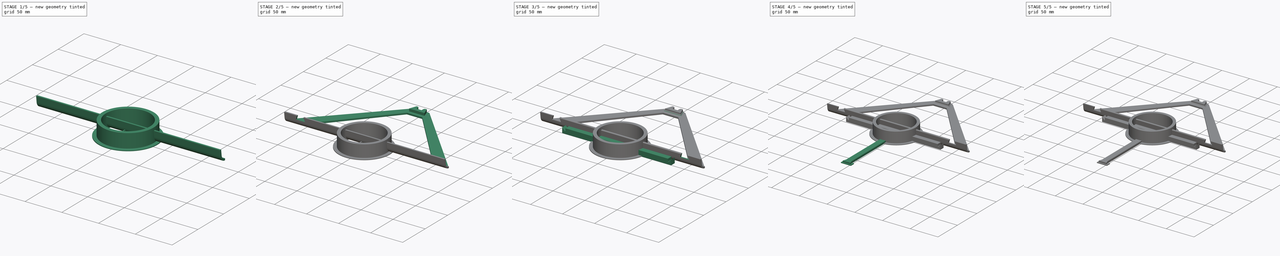
[diagram: build sequence overview — one tinted view per stage of 5, left to right]
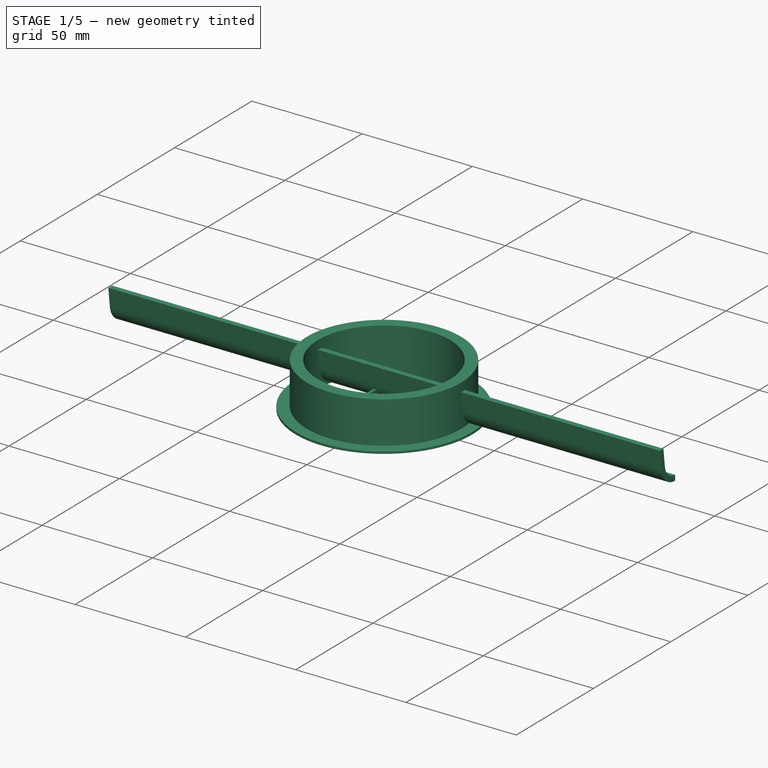
[diagram: stage 1 of 5 — iso view after this stage's code; geometry added in this stage tinted green]
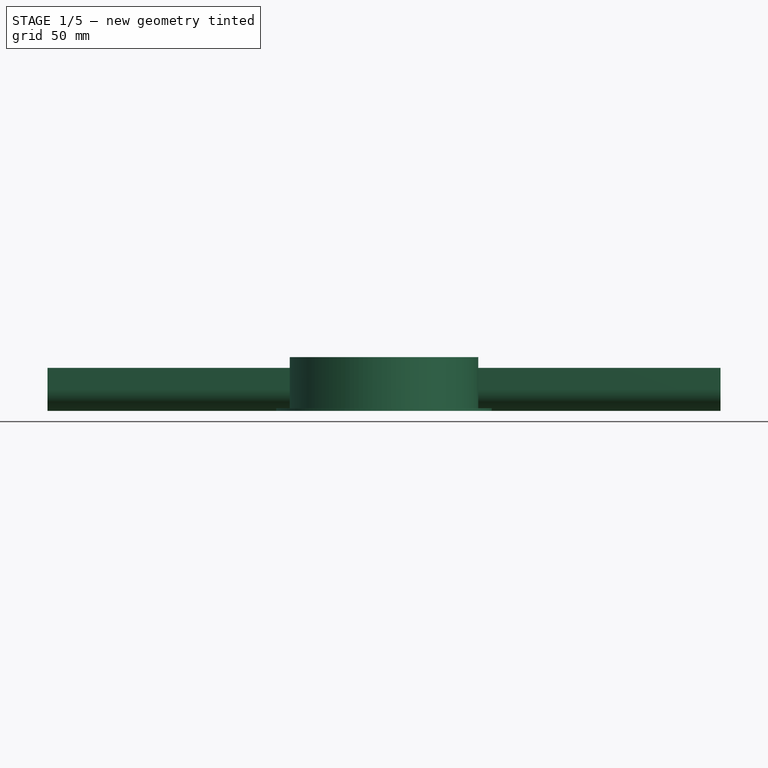
[diagram: stage 1 of 5 — front view after this stage's code; geometry added in this stage tinted green]
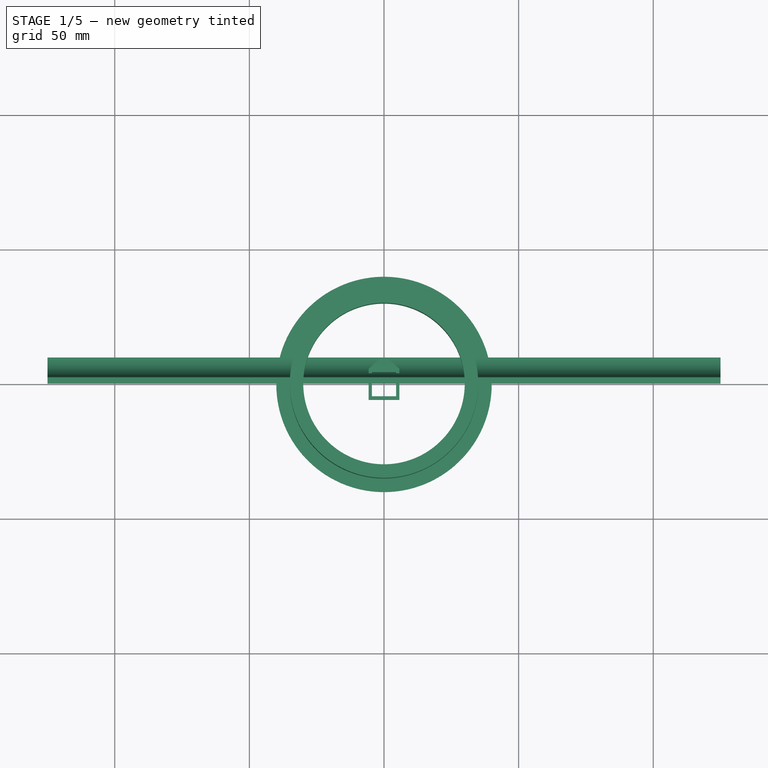
[diagram: stage 1 of 5 — top view after this stage's code; geometry added in this stage tinted green]
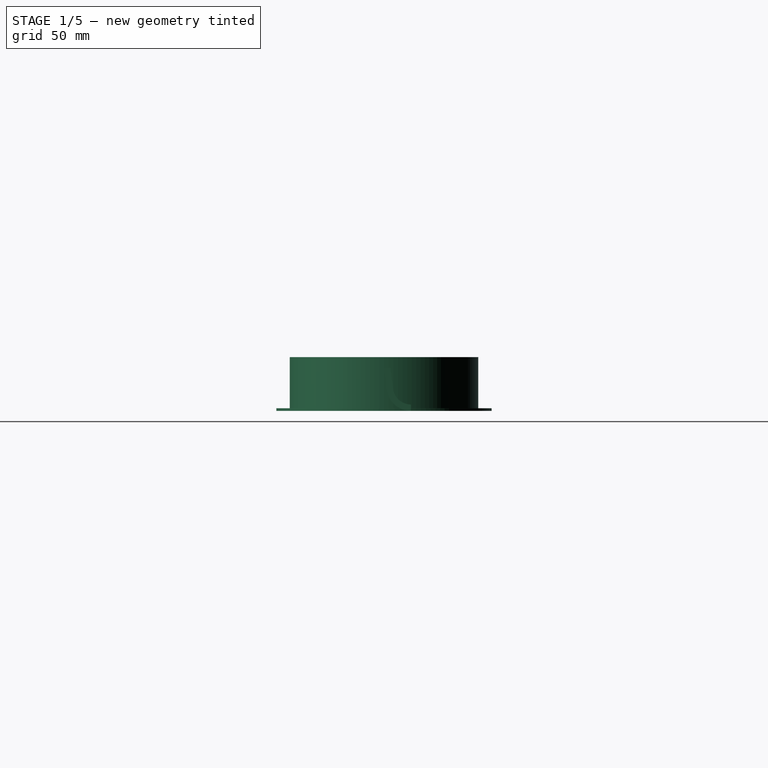
[diagram: stage 1 of 5 — right view after this stage's code; geometry added in this stage tinted green]
FCSTD DOCUMENT  (FreeCAD 0.22R37573 (Git))
Label: dry
License: All rights reserved
LicenseURL: http://en.wikipedia.org/wiki/All_rights_reserved
objects: Sketcher::SketchObject×19, PartDesign::Pad×15, PartDesign::Body×7, PartDesign::Pocket×4, PartDesign::Mirrored×2, PartDesign::Fillet×2, Spreadsheet::Sheet×1
note: 70 computed .brp shape members not serialized (recipe doc carries the construction recipe); baked Part::Feature solids carry a one-line shape summary decoded from their .brp

FEATURE [Sketcher::SketchObject] Sketch  label="rise"
  AttachmentSupport = -> [XY_Plane]
  FullyConstrained = true
  MapMode = 5
  Support = -> [XY_Plane]
  sketch-geometry (8):
    g0: LineSegment StartX=-12 StartY=128 StartZ=0 EndX=12 EndY=128 EndZ=0
    g1: LineSegment StartX=-12 StartY=112 StartZ=0 EndX=12 EndY=112 EndZ=0
    g2: LineSegment StartX=-124 StartY=10 StartZ=0 EndX=-12 EndY=128 EndZ=0
    g3: LineSegment StartX=12 StartY=128 StartZ=0 EndX=124 EndY=10 EndZ=0
    g4: LineSegment StartX=-12 StartY=112 StartZ=0 EndX=-100 EndY=10 EndZ=0
    g5: LineSegment StartX=12 StartY=112 StartZ=0 EndX=100 EndY=10 EndZ=0
    g6: LineSegment StartX=-124 StartY=10 StartZ=0 EndX=-100 EndY=10 EndZ=0
    g7: LineSegment StartX=100 StartY=10 StartZ=0 EndX=124 EndY=10 EndZ=0
  constraints (20):
    c: DistanceX(g0,g0) = 24
    c: DistanceY(g-1,g0) = 128
    c: DistanceY(g1,g0) = 16
    c: Vertical(g0,g1)
    c: Coincident(g2,g0)
    c: Coincident(g3,g0)
    c: Coincident(g4,g1)
    c: Coincident(g5,g1)
    c: Symmetric(g4,g5,g-2)
    c: Coincident(g6,g2)
    c: Coincident(g6,g4)
    c: Coincident(g7,g5)
    c: Coincident(g7,g3)
    c: DistanceX(g6,g6) = 24
    c: Symmetric(g0,g0,g-2)
    c: Symmetric(g1,g1,g-2)
    c: DistanceY(g-1,g4) = 10
    c: Horizontal(g6)
    c: Symmetric(g3,g2,g-2)
    c: DistanceX(g4,g-1) = 100
FEATURE [Sketcher::SketchObject] Sketch001  label="base"
  AttachmentSupport = -> [YZ_Plane]
  FullyConstrained = true
  MapMode = 5
  Placement = pos=(0,0,0) rot=(0.57735,0.57735,0.57735;2.0944rad)
  Support = -> [YZ_Plane]
  sketch-geometry (9):
    g0: LineSegment StartX=10 StartY=2.4 StartZ=0 EndX=10 EndY=0 EndZ=0
    g1: GeomPoint X=0.985278 Y=7.97555 Z=0
    g2: GeomPoint X=3.36739 Y=8.26804 Z=0
    g3: ArcOfCircle CenterX=10.0154 CenterY=9.09981 CenterZ=0 NormalX=0 NormalY=0 NormalZ=1 AngleXU=0 Radius=6.69982 StartAngle=3.26606 EndAngle=4.71009
    g4: ArcOfCircle CenterX=10 CenterY=9.08242 CenterZ=0 NormalX=0 NormalY=0 NormalZ=1 AngleXU=0 Radius=9.08242 StartAngle=3.26377 EndAngle=4.71239
    g5: LineSegment StartX=3.36739 StartY=8.26804 StartZ=0 EndX=2.4 EndY=16 EndZ=0
    g6: LineSegment StartX=2.4 StartY=16 StartZ=0 EndX=0 EndY=16 EndZ=0
    g7: LineSegment StartX=0 StartY=16 StartZ=0 EndX=0.985278 EndY=7.97555 EndZ=0
    g8: LineSegment StartX=0.985278 StartY=7.97555 StartZ=0 EndX=3.36739 EndY=8.26804 EndZ=0
  constraints (24):
    c: PointOnObject(g0,g-1)
    c: Vertical(g0,g0)
    c: DistanceY(g0,g0) = 2.4
    c: Coincident(g3,g2)
    c: Coincident(g3,g0)
    c: Coincident(g4,g1)
    c: Coincident(g4,g0)
    c: Distance(g2,g1) = 2.4
    c: Coincident(g5,g2)
    c: Coincident(g5,g6)
    c: Coincident(g6,g7)
    c: Coincident(g7,g1)
    c: Angle(g7,g-2) = 3.01942
    c: Horizontal(g6)
    c: PointOnObject(g6,g-2)
    c: DistanceX(g6,g6) = 2.4
    c: Tangent(g5,g3)
    c: Tangent(g4,g7)
    c: DistanceY(g-1,g6) = 16
    c: Tangent(g4,g-1)
    c: DistanceX(g-1,g0) = 10
    c: Coincident(g8,g1)
    c: Coincident(g8,g2)
    c: Perpendicular(g8,g7)
FEATURE [PartDesign::Pad] Pad001
  Direction = (1,-2e-16,3e-16)
  Length = 250
  Length2 = 10
  Midplane = true
  Placement = pos=(0,0,0) rot=(0.57735,0.57735,0.57735;2.0944rad)
  Profile = -> Sketch001
  ReferenceAxis = -> Sketch001 [N_Axis]
  Suppressed = false
  Type = 0
FEATURE [PartDesign::Body] Body  label="holder"
  AllowCompound = false
  Group = -> [Sketch,Sketch001,Pad001,Sketch002,Pad,Pad002,Pad014,Sketch003,Pocket,Mirrored,Sketch016,Fillet,Fillet001]
  Origin = -> Origin
  Tip = -> Fillet001
FEATURE [PartDesign::Pad] Pad016
  Direction = (0,0,1)
  Length = 6
  Length2 = 10
  Profile = -> Sketch015
  ReferenceAxis = -> Sketch015 [N_Axis]
  Suppressed = false
  Type = 0
FEATURE [Sketcher::SketchObject] Sketch018
  AttachmentSupport = -> [XZ_Plane006]
  FullyConstrained = true
  MapMode = 5
  Placement = pos=(0,0,0) rot=(1,0,0;1.5708rad)
  Support = -> [XZ_Plane006]
  sketch-geometry (1):
    g0: Circle CenterX=0 CenterY=3 CenterZ=0 NormalX=0 NormalY=0 NormalZ=1 AngleXU=0 Radius=1
  constraints (3):
    c: PointOnObject(g0,g-2)
    c: Diameter(g0) = 2
    c: DistanceY(g-1,g0) = 3
FEATURE [PartDesign::Pocket] Pocket003
  BaseFeature = -> Pad016
  Direction = (0,1,2e-16)
  Length = 5
  Length2 = 5
  Profile = -> Sketch018
  ReferenceAxis = -> Sketch018 [N_Axis]
  Suppressed = false
  Type = 1
FEATURE [PartDesign::Body] Body006  label="spacer"
  AllowCompound = false
  Group = -> [Sketch015,Pad016,Sketch018,Pocket003]
  Origin = -> Origin006
  Tip = -> Pocket003
FEATURE [Sketcher::SketchObject] Sketch019
  AttachmentSupport = -> [XY_Plane007]
  FullyConstrained = true
  MapMode = 5
  Support = -> [XY_Plane007]
  sketch-geometry (2):
    g0: Circle CenterX=0 CenterY=0 CenterZ=0 NormalX=0 NormalY=0 NormalZ=1 AngleXU=0 Radius=30
    g1: Circle CenterX=0 CenterY=0 CenterZ=0 NormalX=0 NormalY=0 NormalZ=1 AngleXU=0 Radius=35
  constraints (4):
    c: Coincident(g0,g-1)
    c: Coincident(g1,g0)
    c: Diameter(g0) = 60
    c: Diameter(g1) = 70
FEATURE [PartDesign::Pad] Pad017
  Direction = (0,0,1)
  Length = 20
  Length2 = 10
  Profile = -> Sketch019
  ReferenceAxis = -> Sketch019 [N_Axis]
  Suppressed = false
  Type = 0
FEATURE [Sketcher::SketchObject] Sketch020
  AttachmentSupport = -> [XY_Plane007]
  FullyConstrained = true
  MapMode = 5
  Support = -> [XY_Plane007]
  sketch-geometry (2):
    g0: Circle CenterX=0 CenterY=0 CenterZ=0 NormalX=0 NormalY=0 NormalZ=1 AngleXU=0 Radius=35
    g1: Circle CenterX=0 CenterY=0 CenterZ=0 NormalX=0 NormalY=0 NormalZ=1 AngleXU=0 Radius=40
  constraints (4):
    c: Coincident(g0,g-1)
    c: Coincident(g1,g0)
    c: Diameter(g0) = 70
    c: Diameter(g1) = 80
FEATURE [PartDesign::Pad] Pad018
  BaseFeature = -> Pad017
  Direction = (0,0,1)
  Length = 1
  Length2 = 10
  Profile = -> Sketch020
  ReferenceAxis = -> Sketch020 [N_Axis]
  Suppressed = false
  Type = 0
FEATURE [PartDesign::Body] Body007  label="center"
  AllowCompound = false
  Group = -> [Sketch019,Pad017,Sketch020,Pad018]
  Origin = -> Origin007
  Tip = -> Pad018
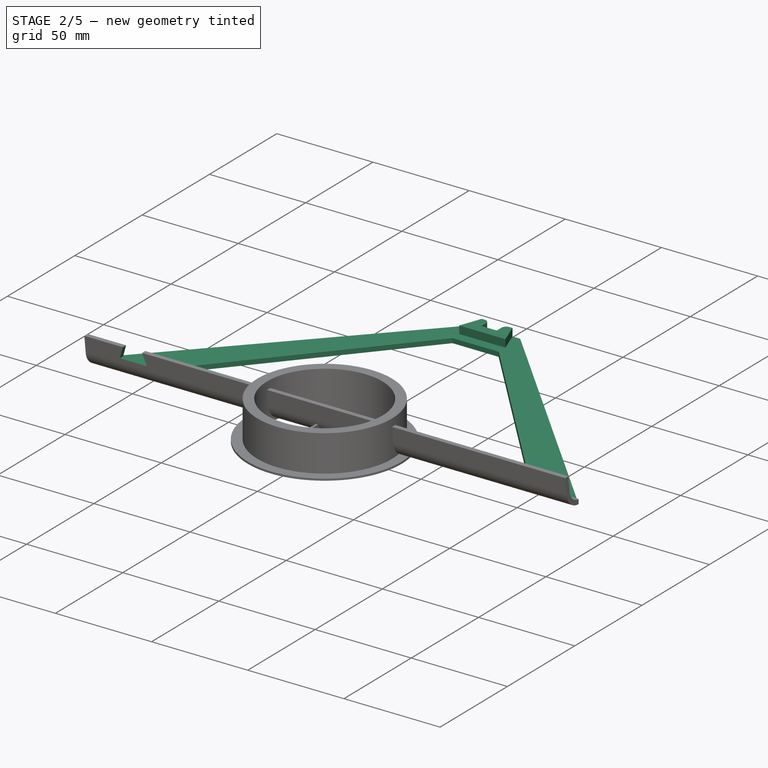
[diagram: stage 2 of 5 — iso view after this stage's code; geometry added in this stage tinted green]
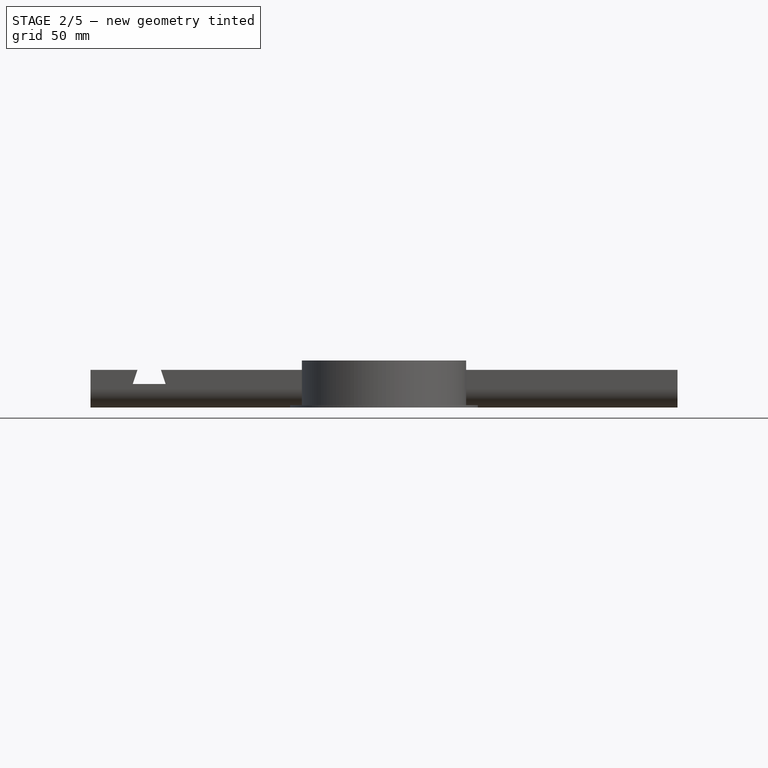
[diagram: stage 2 of 5 — front view after this stage's code; geometry added in this stage tinted green]
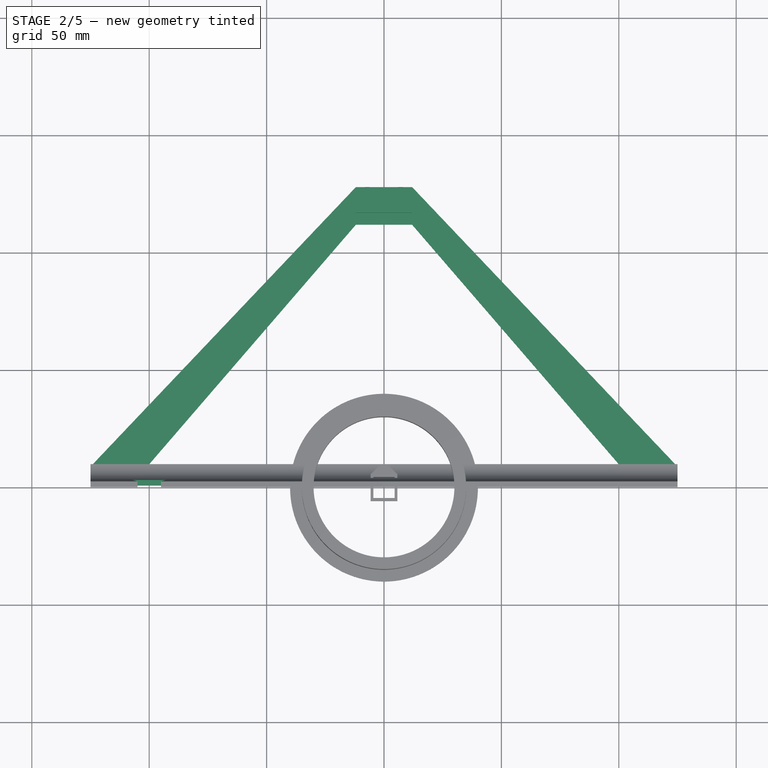
[diagram: stage 2 of 5 — top view after this stage's code; geometry added in this stage tinted green]
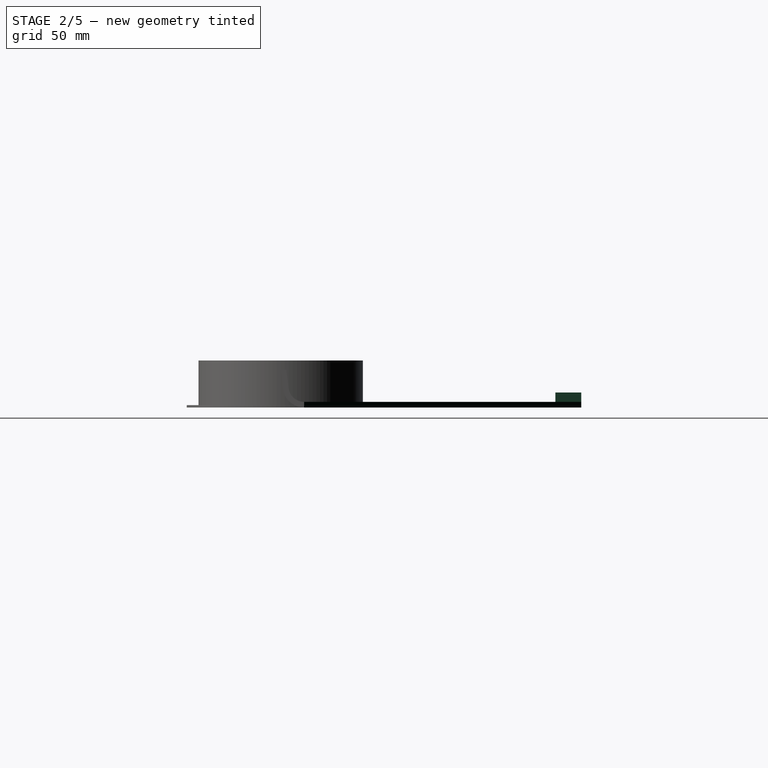
[diagram: stage 2 of 5 — right view after this stage's code; geometry added in this stage tinted green]
FEATURE [Sketcher::SketchObject] Sketch002  label="notch"
  AttachmentSupport = -> [XY_Plane]
  ExternalGeometry = -> [Sketch]
  FullyConstrained = true
  MapMode = 5
  Support = -> [XY_Plane]
  sketch-geometry (12):
    g0: LineSegment StartX=-4 StartY=125.5 StartZ=0 EndX=-4 EndY=118 EndZ=0
    g1: LineSegment StartX=4 StartY=118 StartZ=0 EndX=4 EndY=125.5 EndZ=0
    g2: LineSegment StartX=-8 StartY=128 StartZ=0 EndX=-6.5 EndY=128 EndZ=0
    g3: LineSegment StartX=8 StartY=128 StartZ=0 EndX=6.5 EndY=128 EndZ=0
    g4: ArcOfCircle CenterX=-6.5 CenterY=125.5 CenterZ=0 NormalX=0 NormalY=0 NormalZ=1 AngleXU=0 Radius=2.5 StartAngle=5e-16 EndAngle=1.5708
    g5: GeomPoint X=-4 Y=128 Z=0
    g6: ArcOfCircle CenterX=6.5 CenterY=125.5 CenterZ=0 NormalX=0 NormalY=0 NormalZ=1 AngleXU=0 Radius=2.5 StartAngle=1.5708 EndAngle=3.14159
    g7: GeomPoint X=4 Y=128 Z=0
    g8: LineSegment StartX=4 StartY=118 StartZ=0 EndX=-4 EndY=118 EndZ=0
    g9: LineSegment StartX=-8 StartY=128 StartZ=0 EndX=-12 EndY=117 EndZ=0
    g10: LineSegment StartX=-12 StartY=117 StartZ=0 EndX=12 EndY=117 EndZ=0
    g11: LineSegment StartX=12 StartY=117 StartZ=0 EndX=8 EndY=128 EndZ=0
  constraints (29):
    c: Vertical(g0)
    c: Vertical(g1)
    c: Symmetric(g0,g1,g-2)
    c: DistanceX(g0,g1) = 8
    c: DistanceY(g1,g7) = 10
    c: Horizontal(g7,g5)
    c: Horizontal(g3)
    c: Symmetric(g2,g3,g-2)
    c: DistanceX(g2,g5) = 4
    c: PointOnObject(g5,g2)
    c: PointOnObject(g5,g0)
    c: Tangent(g2,g4) = 1.5708
    c: Tangent(g0,g4) = 1.5708
    c: PointOnObject(g7,g1)
    c: PointOnObject(g7,g3)
    c: Tangent(g1,g6) = 1.5708
    c: Tangent(g3,g6) = -1.5708
    c: Equal(g6,g4)
    c: Diameter(g4) = 5
    c: Coincident(g8,g1)
    c: Coincident(g8,g0)
    c: DistanceY(g-1,g0) = 118
    c: Coincident(g2,g9)
    c: Coincident(g9,g10)
    c: Coincident(g10,g11)
    c: Coincident(g11,g3)
    c: DistanceY(g9,g0) = 1
    c: Symmetric(g10,g9,g-2)
    c: Vertical(g10,g-3)
FEATURE [PartDesign::Pad] Pad
  BaseFeature = -> Pad001
  Direction = (0,0,1)
  Length = 2.4
  Length2 = 10
  Placement = pos=(0,0,0) rot=(0.57735,0.57735,0.57735;2.0944rad)
  Profile = -> Sketch
  ReferenceAxis = -> Sketch [N_Axis]
  Suppressed = false
  Type = 0
FEATURE [PartDesign::Pad] Pad002
  BaseFeature = -> Pad
  Direction = (0,0,1)
  Length = 6.4
  Length2 = 10
  Placement = pos=(0,0,0) rot=(0.57735,0.57735,0.57735;2.0944rad)
  Profile = -> Sketch002
  ReferenceAxis = -> Sketch002 [N_Axis]
  Suppressed = false
  Type = 0
FEATURE [PartDesign::Body] Body002  label="brace"
  AllowCompound = false
  Group = -> [Sketch005,Sketch006,Pad012,Pad013]
  Origin = -> Origin002
  Tip = -> Pad013
FEATURE [Sketcher::SketchObject] Sketch016  label="notch2"
  AttachmentSupport = -> [YZ_Plane]
  ExternalGeometry = -> [Pad002]
  FullyConstrained = true
  MapMode = 5
  Placement = pos=(0,0,0) rot=(0.57735,0.57735,0.57735;2.0944rad)
  Support = -> [YZ_Plane]
  sketch-geometry (3):
    g0: LineSegment StartX=118 StartY=2.4 StartZ=0 EndX=122 EndY=6.4 EndZ=0
    g1: LineSegment StartX=118 StartY=2.4 StartZ=0 EndX=118 EndY=6.4 EndZ=0
    g2: LineSegment StartX=118 StartY=6.4 StartZ=0 EndX=122 EndY=6.4 EndZ=0
  constraints (8):
    c: Vertical(g1)
    c: Coincident(g2,g1)
    c: Horizontal(g2)
    c: Coincident(g0,g2)
    c: Coincident(g1,g0)
    c: Angle(g1,g0) = 2.35619
    c: DistanceY(g1,g1) = 4
    c: Coincident(g0,g-3)
FEATURE [PartDesign::Pad] Pad014
  BaseFeature = -> Pad002
  Direction = (1,0,0)
  Length = 8
  Length2 = 10
  Midplane = true
  Placement = pos=(0,0,0) rot=(0.57735,0.57735,0.57735;2.0944rad)
  Profile = -> Sketch016
  ReferenceAxis = -> Sketch016 [N_Axis]
  Suppressed = false
  Type = 0
FEATURE [PartDesign::Pocket] Pocket
  BaseFeature = -> Pad014
  Direction = (0,1,2e-16)
  Length = 5
  Length2 = 5
  Placement = pos=(0,0,0) rot=(0.57735,0.57735,0.57735;2.0944rad)
  Profile = -> Sketch003
  ReferenceAxis = -> Sketch003 [N_Axis]
  Suppressed = false
  Type = 1
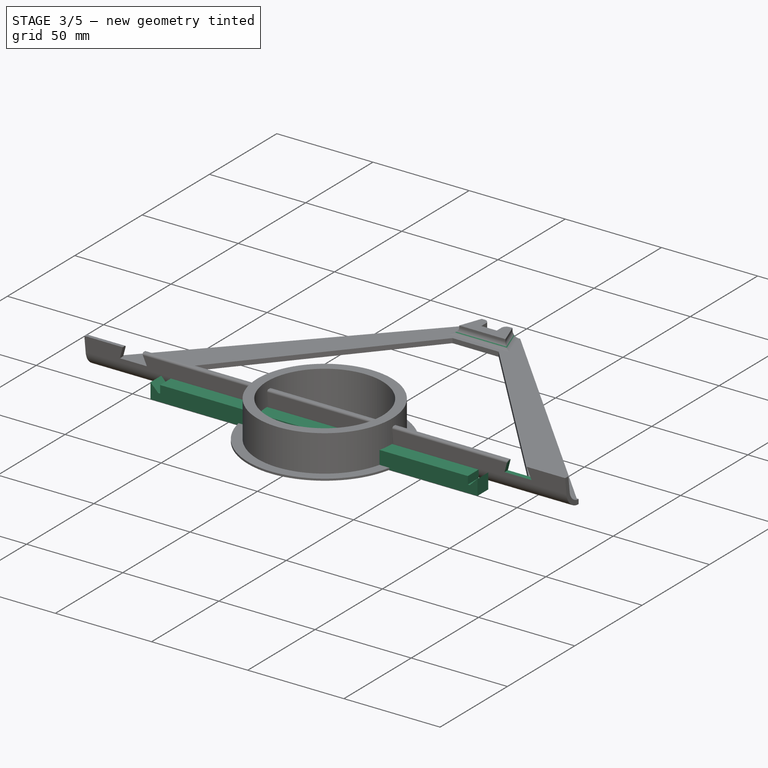
[diagram: stage 3 of 5 — iso view after this stage's code; geometry added in this stage tinted green]
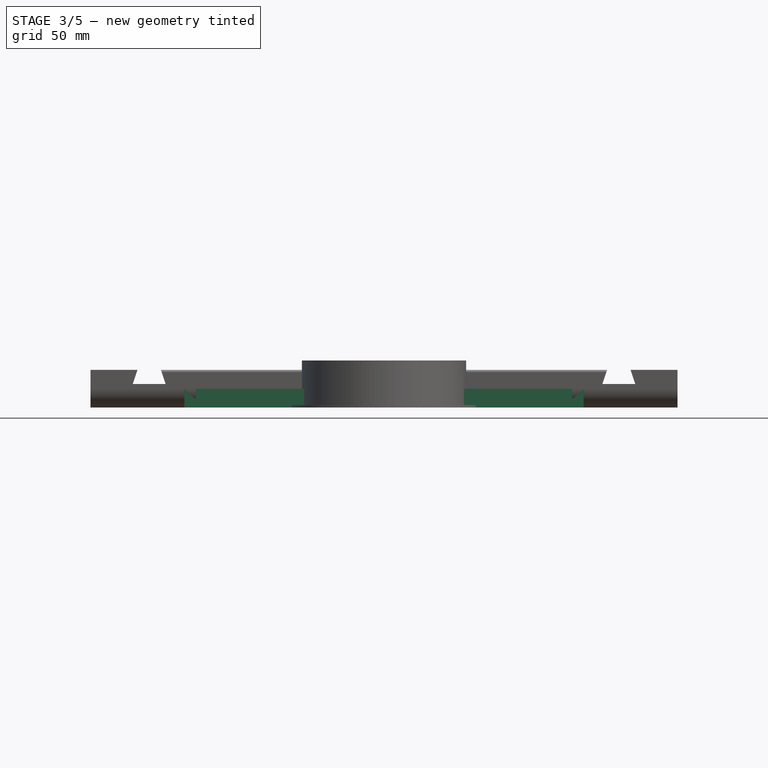
[diagram: stage 3 of 5 — front view after this stage's code; geometry added in this stage tinted green]
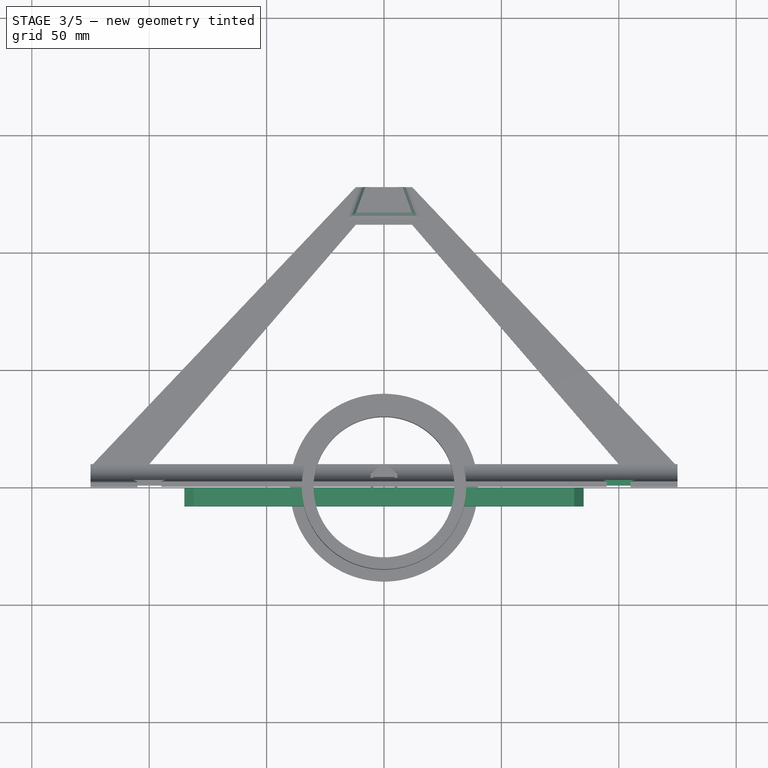
[diagram: stage 3 of 5 — top view after this stage's code; geometry added in this stage tinted green]
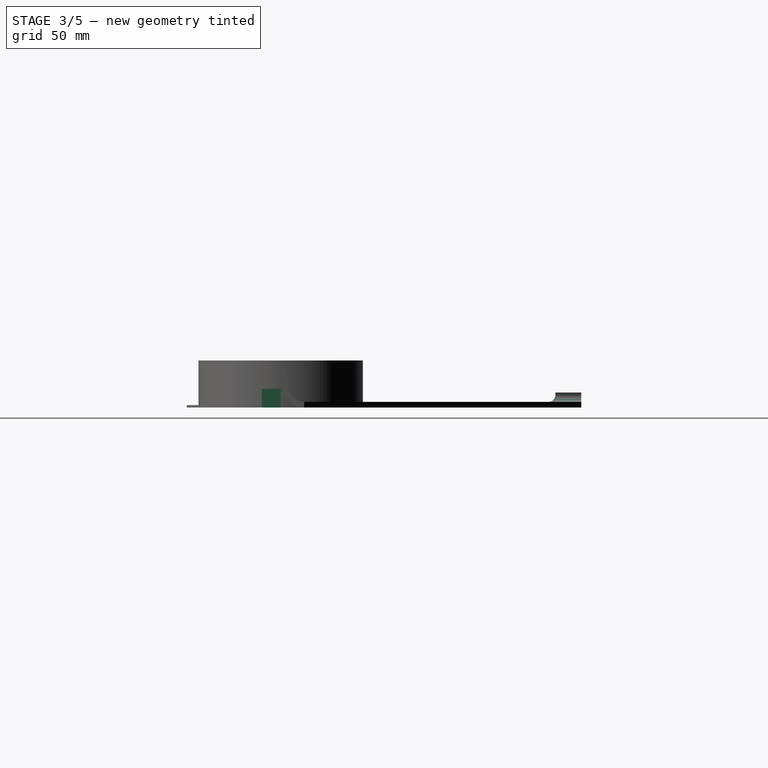
[diagram: stage 3 of 5 — right view after this stage's code; geometry added in this stage tinted green]
FEATURE [PartDesign::Mirrored] Mirrored
  BaseFeature = -> Pocket
  MirrorPlane = -> Sketch003 [V_Axis]
  Originals = -> [Pocket]
  Placement = pos=(0,0,0) rot=(0.57735,0.57735,0.57735;2.0944rad)
  Suppressed = false
FEATURE [PartDesign::Fillet] Fillet
  Base = -> Mirrored [Edge36,Edge30,Edge105]
  BaseFeature = -> Mirrored
  Placement = pos=(0,0,0) rot=(0.57735,0.57735,0.57735;2.0944rad)
  Radius = 1
  SupportTransform = false
  Suppressed = false
  UseAllEdges = false
FEATURE [PartDesign::Pad] Pad015
  Direction = (0,-1,2e-16)
  Length = 8
  Length2 = 10
  Placement = pos=(0,0,0) rot=(1,0,0;1.5708rad)
  Profile = -> Sketch004
  ReferenceAxis = -> Sketch004 [N_Axis]
  Suppressed = false
  Type = 0
FEATURE [PartDesign::Mirrored] Mirrored001
  BaseFeature = -> Pad015
  MirrorPlane = -> Sketch004 [V_Axis]
  Originals = -> [Pad015]
  Placement = pos=(0,0,0) rot=(1,0,0;1.5708rad)
  Suppressed = false
FEATURE [PartDesign::Body] Body001  label="rod"
  AllowCompound = false
  Group = -> [Sketch004,Pad015,Mirrored001]
  Origin = -> Origin001
  Tip = -> Mirrored001
FEATURE [PartDesign::Fillet] Fillet001
  Base = -> Fillet [Edge73,Edge74,Edge75]
  BaseFeature = -> Fillet
  Placement = pos=(0,0,0) rot=(0.57735,0.57735,0.57735;2.0944rad)
  Radius = 3
  SupportTransform = false
  Suppressed = false
  UseAllEdges = false
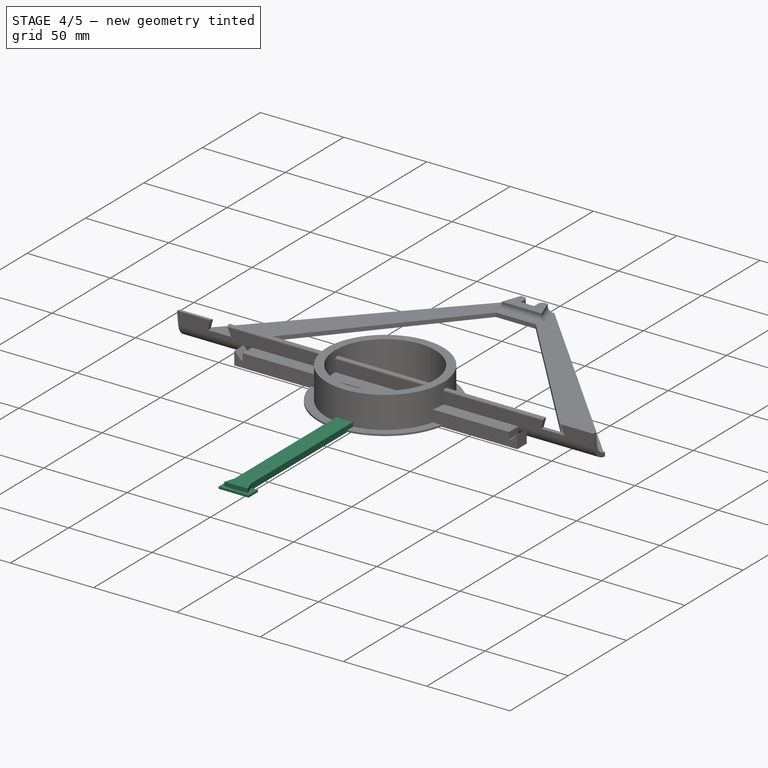
[diagram: stage 4 of 5 — iso view after this stage's code; geometry added in this stage tinted green]
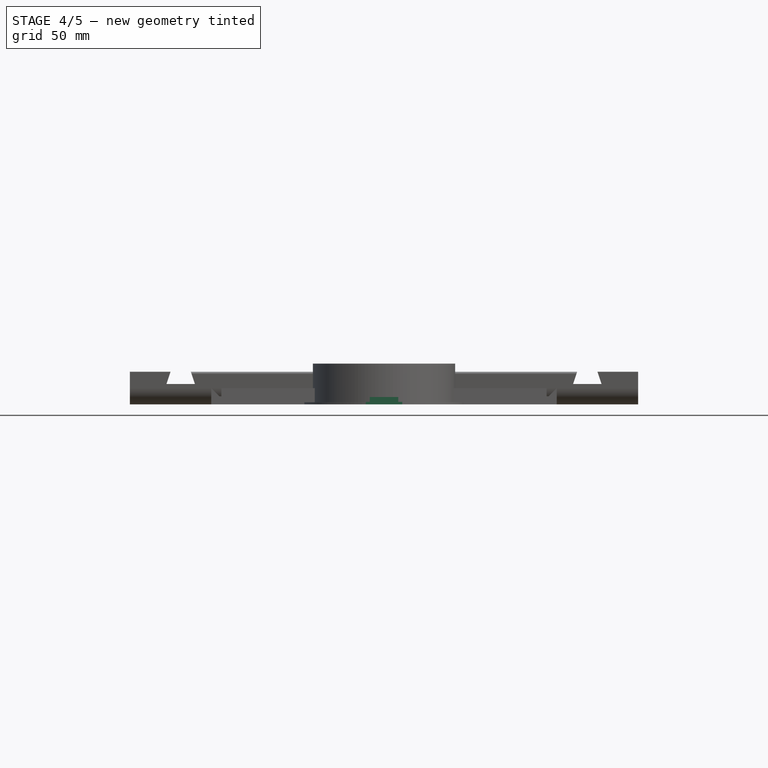
[diagram: stage 4 of 5 — front view after this stage's code; geometry added in this stage tinted green]
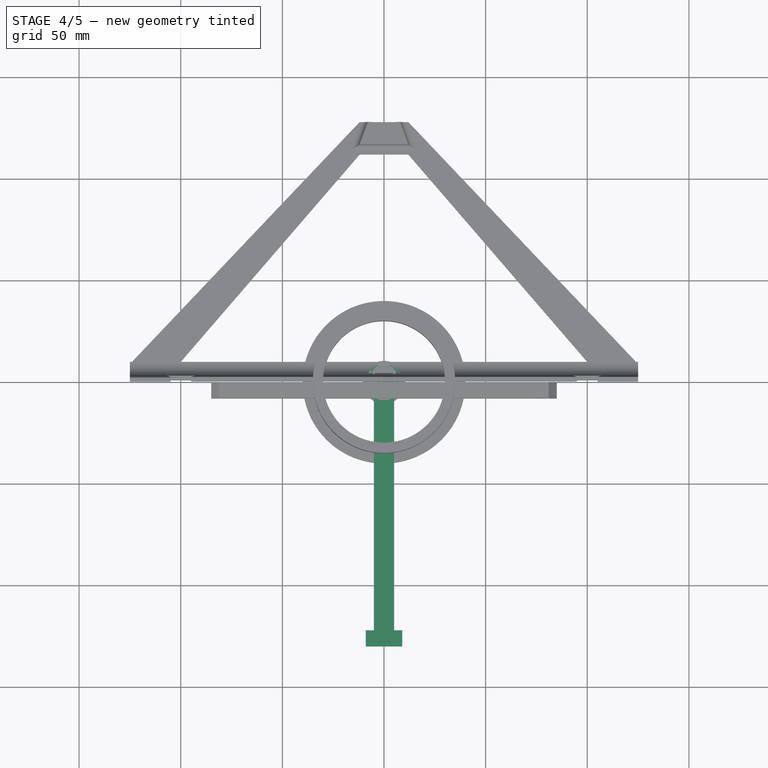
[diagram: stage 4 of 5 — top view after this stage's code; geometry added in this stage tinted green]
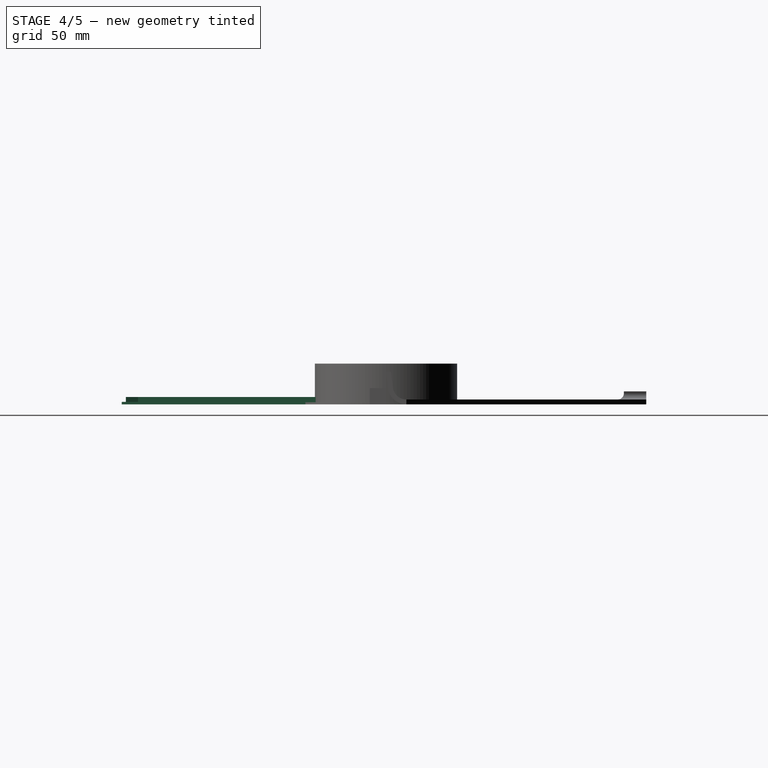
[diagram: stage 4 of 5 — right view after this stage's code; geometry added in this stage tinted green]
FEATURE [PartDesign::Body] Body004  label="hub-outer-42-21-18"
  AllowCompound = false
  Group = -> [Sketch007,Pad006,Sketch008,Pad007,Sketch009,Sketch010,Pad008,Pocket001]
  Origin = -> Origin004
  Tip = -> Pocket001
FEATURE [Sketcher::SketchObject] Sketch012  label="center-18"
  AttachmentSupport = -> [XY_Plane005]
  FullyConstrained = true
  MapMode = 5
  Support = -> [XY_Plane005]
  sketch-geometry (2):
    g0: GeomPoint X=0 Y=0 Z=0
    g1: Circle CenterX=0 CenterY=0 CenterZ=0 NormalX=0 NormalY=0 NormalZ=1 AngleXU=0 Radius=8.95
  constraints (3):
    c: Coincident(g0,g-1)
    c: Coincident(g1,g0)
    c: Diameter(g1) = 17.9
FEATURE [PartDesign::Pad] Pad010
  Direction = (0,0,1)
  Length = 5.2
  Length2 = 10
  Profile = -> Sketch012
  ReferenceAxis = -> Sketch012 [N_Axis]
  Suppressed = false
  Type = 0
FEATURE [Sketcher::SketchObject] Sketch013  label="center-hole-8+"
  AttachmentSupport = -> [XY_Plane004]
  FullyConstrained = true
  MapMode = 5
  Support = -> [XY_Plane004]
  expr: Constraints[11] = <<s>>.inner
  sketch-geometry (5):
    g0: LineSegment StartX=-4.5 StartY=4.5 StartZ=0 EndX=-4.5 EndY=-4.5 EndZ=0
    g1: LineSegment StartX=-4.5 StartY=-4.5 StartZ=0 EndX=4.5 EndY=-4.5 EndZ=0
    g2: LineSegment StartX=4.5 StartY=-4.5 StartZ=0 EndX=4.5 EndY=4.5 EndZ=0
    g3: LineSegment StartX=4.5 StartY=4.5 StartZ=0 EndX=-4.5 EndY=4.5 EndZ=0
    g4: GeomPoint X=0 Y=0 Z=0
  constraints (12):
    c: Coincident(g0,g1)
    c: Coincident(g1,g2)
    c: Coincident(g2,g3)
    c: Coincident(g3,g0)
    c: Vertical(g0)
    c: Vertical(g2)
    c: Horizontal(g1)
    c: Horizontal(g3)
    c: Symmetric(g2,g0,g4)
    c: Coincident(g4,g-1)
    c: Equal(g1,g0)
    c: DistanceY(g0,g0) = 9
FEATURE [Sketcher::SketchObject] Sketch014  label="shoulder-21"
  AttachmentSupport = -> [XY_Plane005]
  FullyConstrained = true
  MapMode = 5
  Support = -> [XY_Plane005]
  sketch-geometry (1):
    g0: Circle CenterX=0 CenterY=0 CenterZ=0 NormalX=0 NormalY=0 NormalZ=1 AngleXU=0 Radius=10.5
  constraints (2):
    c: Coincident(g0,g-1)
    c: Diameter(g0) = 21
FEATURE [PartDesign::Pad] Pad011
  BaseFeature = -> Pad010
  Direction = (0,0,1)
  Length = 2
  Length2 = 10
  Profile = -> Sketch014
  ReferenceAxis = -> Sketch014 [N_Axis]
  Suppressed = false
  Type = 0
FEATURE [PartDesign::Body] Body005  label="hub-inner-21-18"
  AllowCompound = false
  Group = -> [Sketch012,Pad010,Sketch013,Sketch014,Pad011,Pocket002]
  Origin = -> Origin005
  Tip = -> Pocket002
FEATURE [Sketcher::SketchObject] Sketch015
  AttachmentSupport = -> [XY_Plane006]
  FullyConstrained = true
  MapMode = 5
  Support = -> [XY_Plane006]
  expr: Constraints[18] = Spreadsheet.inner
  sketch-geometry (12):
    g0: LineSegment StartX=-4.5 StartY=4.5 StartZ=0 EndX=-4.5 EndY=-4.5 EndZ=0
    g1: LineSegment StartX=-4.5 StartY=-4.5 StartZ=0 EndX=4.5 EndY=-4.5 EndZ=0
    g2: LineSegment StartX=4.5 StartY=-4.5 StartZ=0 EndX=4.5 EndY=4.5 EndZ=0
    g3: LineSegment StartX=4.5 StartY=4.5 StartZ=0 EndX=-4.5 EndY=4.5 EndZ=0
    g4: GeomPoint X=0 Y=0 Z=0
    g5: LineSegment StartX=-5.7 StartY=5.7 StartZ=0 EndX=-5.7 EndY=-5.7 EndZ=0
    g6: LineSegment StartX=-5.7 StartY=-5.7 StartZ=0 EndX=5.7 EndY=-5.7 EndZ=0
    g7: LineSegment StartX=5.7 StartY=-5.7 StartZ=0 EndX=5.7 EndY=5.7 EndZ=0
    g8: GeomPoint X=0 Y=0 Z=0
    g9: LineSegment StartX=-5.7 StartY=5.7 StartZ=0 EndX=-1.5 EndY=9.7 EndZ=0
    g10: LineSegment StartX=-1.5 StartY=9.7 StartZ=0 EndX=1.5 EndY=9.7 EndZ=0
    g11: LineSegment StartX=1.5 StartY=9.7 StartZ=0 EndX=5.7 EndY=5.7 EndZ=0
  constraints (29):
    c: Coincident(g0,g1)
    c: Coincident(g1,g2)
    c: Coincident(g2,g3)
    c: Coincident(g3,g0)
    c: Vertical(g0)
    c: Vertical(g2)
    c: Horizontal(g1)
    c: Horizontal(g3)
    c: Symmetric(g2,g0,g4)
    c: Coincident(g4,g-1)
    c: Coincident(g5,g6)
    c: Coincident(g6,g7)
    c: Vertical(g5)
    c: Vertical(g7)
    c: Horizontal(g6)
    c: Symmetric(g7,g5,g8)
    c: Coincident(g8,g4)
    c: Equal(g0,g3)
    c: DistanceY(g0,g0) = 9
    c: DistanceY(g0,g5) = 1.2
    c: Coincident(g5,g9)
    c: Coincident(g9,g10)
    c: Coincident(g10,g11)
    c: Coincident(g11,g7)
    c: Symmetric(g9,g10,g-2)
    c: DistanceY(g5,g9) = 4
    c: DistanceX(g10,g10) = 3
    c: Equal(g5,g6)
    c: Equal(g7,g6)
FEATURE [Spreadsheet::Sheet] Spreadsheet  label="s"
  cells = A1='inner; B1(inner)=9; A2='outer; B2(outer)==8.5 + 1.2
FEATURE [PartDesign::Pad] Pad012
  Direction = (0,0,1)
  Length = 3.6
  Length2 = 10
  Profile = -> Sketch005
  ReferenceAxis = -> Sketch005 [N_Axis]
  Suppressed = false
  Type = 0
FEATURE [PartDesign::Pad] Pad013
  BaseFeature = -> Pad012
  Direction = (0,0,1)
  Length = 1.2
  Length2 = 10
  Profile = -> Sketch006
  ReferenceAxis = -> Sketch006 [N_Axis]
  Suppressed = false
  Type = 0
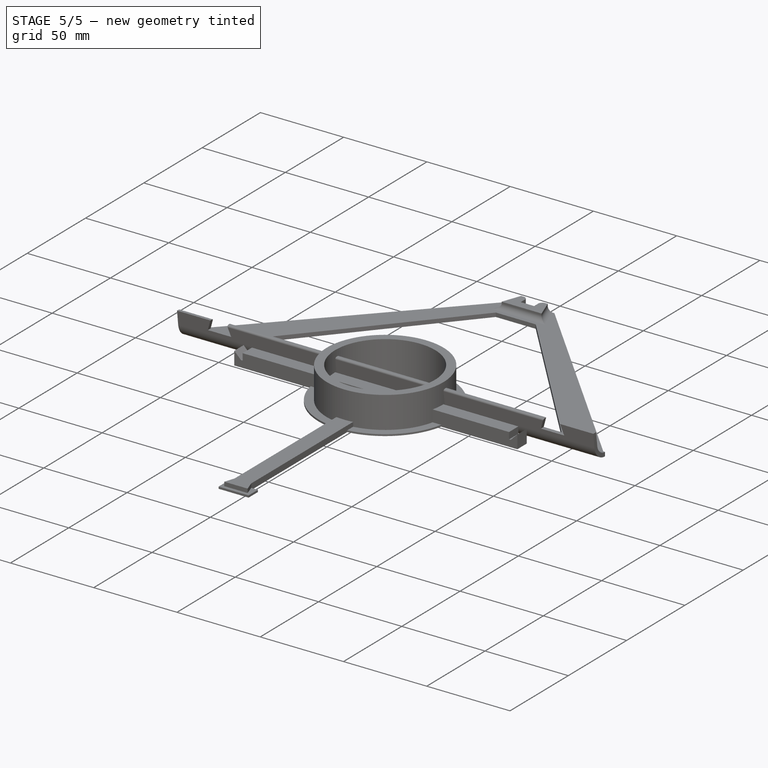
[diagram: stage 5 of 5 — iso view after this stage's code; geometry added in this stage tinted green]
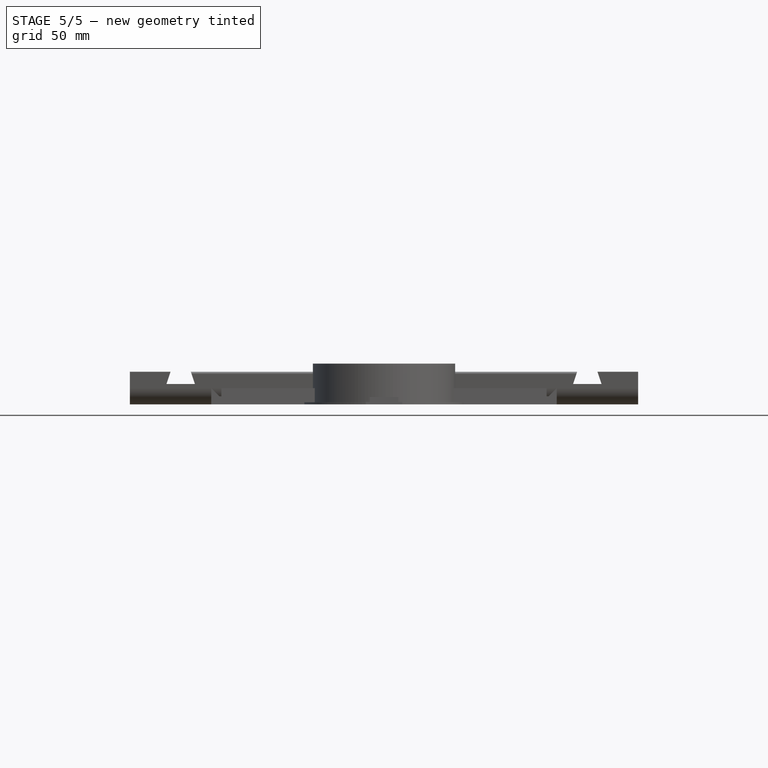
[diagram: stage 5 of 5 — front view after this stage's code; geometry added in this stage tinted green]
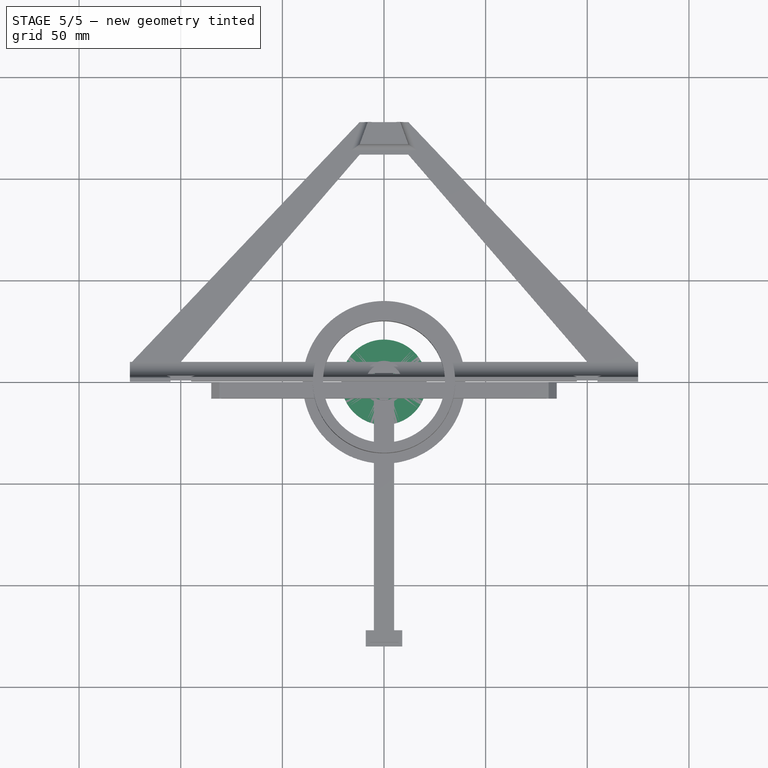
[diagram: stage 5 of 5 — top view after this stage's code; geometry added in this stage tinted green]
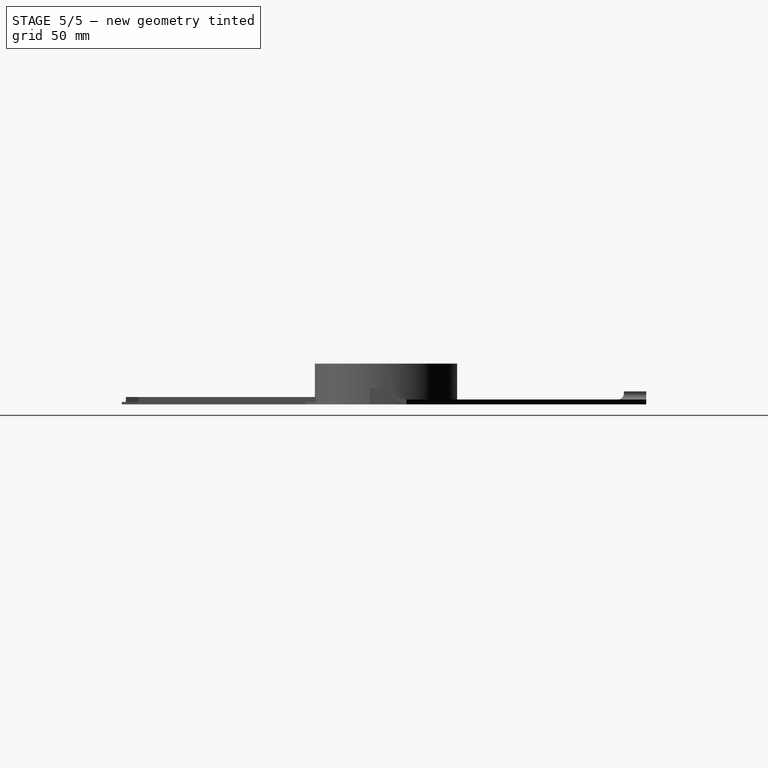
[diagram: stage 5 of 5 — right view after this stage's code; geometry added in this stage tinted green]
FEATURE [Sketcher::SketchObject] Sketch003  label="brace001"
  AttachmentSupport = -> [XZ_Plane]
  FullyConstrained = true
  MapMode = 5
  Placement = pos=(0,0,0) rot=(1,0,0;1.5708rad)
  Support = -> [XZ_Plane]
  sketch-geometry (5):
    g0: LineSegment StartX=-105 StartY=16 StartZ=0 EndX=-107 EndY=10 EndZ=0
    g1: LineSegment StartX=-107 StartY=10 StartZ=0 EndX=-93 EndY=10 EndZ=0
    g2: LineSegment StartX=-93 StartY=10 StartZ=0 EndX=-95 EndY=16 EndZ=0
    g3: LineSegment StartX=-105 StartY=16 StartZ=0 EndX=-95 EndY=16 EndZ=0
    g4: GeomPoint X=-100 Y=16 Z=0
  constraints (13):
    c: Coincident(g0,g1)
    c: Horizontal(g1)
    c: Coincident(g1,g2)
    c: DistanceY(g0,g0) = 6
    c: Equal(g0,g2)
    c: DistanceX(g0,g2) = 10
    c: DistanceX(g0,g1) = 14
    c: Coincident(g3,g0)
    c: Coincident(g3,g2)
    c: Symmetric(g3,g3,g4)
    c: Horizontal(g3)
    c: DistanceY(g-1,g1) = 10
    c: DistanceX(g4,g-1) = 100
FEATURE [Sketcher::SketchObject] Sketch004
  AttachmentSupport = -> [XZ_Plane001]
  FullyConstrained = true
  MapMode = 5
  Placement = pos=(0,0,0) rot=(1,0,0;1.5708rad)
  Support = -> [XZ_Plane001]
  sketch-geometry (9):
    g0: LineSegment StartX=-85 StartY=8 StartZ=0 EndX=-85 EndY=0 EndZ=0
    g1: LineSegment StartX=-85 StartY=8 StartZ=0 EndX=-81 EndY=4 EndZ=0
    g2: LineSegment StartX=-81 StartY=4 StartZ=0 EndX=-80 EndY=4 EndZ=0
    g3: LineSegment StartX=-80 StartY=4 StartZ=0 EndX=-80 EndY=8 EndZ=0
    g4: LineSegment StartX=0 StartY=8 StartZ=0 EndX=0 EndY=0.5 EndZ=0
    g5: LineSegment StartX=0 StartY=8 StartZ=0 EndX=-80 EndY=8 EndZ=0
    g6: LineSegment StartX=0 StartY=0.5 StartZ=0 EndX=-0.5 EndY=0.5 EndZ=0
    g7: LineSegment StartX=-0.5 StartY=0.5 StartZ=0 EndX=-0.5 EndY=0 EndZ=0
    g8: LineSegment StartX=-0.5 StartY=0 StartZ=0 EndX=-85 EndY=0 EndZ=0
  constraints (27):
    c: Vertical(g0)
    c: Coincident(g0,g1)
    c: Angle(g1,g0) = 2.35619
    c: DistanceX(g0,g1) = 4
    c: Horizontal(g2)
    c: Coincident(g3,g2)
    c: Vertical(g3)
    c: PointOnObject(g4,g-2)
    c: DistanceY(g-1,g4) = 8
    c: Horizontal(g3,g0)
    c: DistanceX(g0,g-1) = 85
    c: Coincident(g2,g1)
    c: DistanceX(g2,g2) = 1
    c: Coincident(g5,g3)
    c: Horizontal(g5)
    c: Coincident(g5,g4)
    c: Coincident(g6,g7)
    c: Coincident(g7,g8)
    c: Coincident(g8,g0)
    c: Horizontal(g8)
    c: Coincident(g4,g6)
    c: PointOnObject(g4,g-2)
    c: Horizontal(g6)
    c: Vertical(g7)
    c: DistanceY(g-1,g4) = 0.5
    c: DistanceX(g7,g-1) = 0.5
    c: PointOnObject(g7,g-1)
FEATURE [Sketcher::SketchObject] Sketch005  label="key"
  AttachmentSupport = -> [XY_Plane002]
  FullyConstrained = true
  MapMode = 5
  Support = -> [XY_Plane002]
  sketch-geometry (8):
    g0: LineSegment StartX=-7 StartY=6 StartZ=0 EndX=-5 EndY=0 EndZ=0
    g1: LineSegment StartX=5 StartY=0 StartZ=0 EndX=7 EndY=6 EndZ=0
    g2: LineSegment StartX=7 StartY=6 StartZ=0 EndX=-7 EndY=6 EndZ=0
    g3: LineSegment StartX=-5 StartY=-122 StartZ=0 EndX=-7 EndY=-128 EndZ=0
    g4: LineSegment StartX=-7 StartY=-128 StartZ=0 EndX=7 EndY=-128 EndZ=0
    g5: LineSegment StartX=7 StartY=-128 StartZ=0 EndX=5 EndY=-122 EndZ=0
    g6: LineSegment StartX=5 StartY=0 StartZ=0 EndX=5 EndY=-122 EndZ=0
    g7: LineSegment StartX=-5 StartY=0 StartZ=0 EndX=-5 EndY=-122 EndZ=0
  constraints (21):
    c: Coincident(g1,g2)
    c: Coincident(g2,g0)
    c: DistanceY(g0,g0) = 6
    c: PointOnObject(g0,g-1)
    c: Coincident(g3,g4)
    c: Coincident(g4,g5)
    c: DistanceY(g3,g0) = 122
    c: Coincident(g6,g1)
    c: Coincident(g6,g5)
    c: Coincident(g7,g0)
    c: Coincident(g7,g3)
    c: Vertical(g6)
    c: Vertical(g7)
    c: Horizontal(g5,g3)
    c: DistanceY(g3,g3) = 6
    c: Symmetric(g1,g0,g-1)
    c: DistanceX(g0,g1) = 10
    c: DistanceX(g2,g2) = 14
    c: Symmetric(g0,g1,g-2)
    c: DistanceX(g4,g4) = 14
    c: Symmetric(g4,g3,g-2)
FEATURE [Sketcher::SketchObject] Sketch006  label="cover"
  AttachmentSupport = -> [XY_Plane002]
  ExternalGeometry = -> [Sketch005]
  FullyConstrained = true
  MapMode = 5
  Support = -> [XY_Plane002]
  sketch-geometry (9):
    g0: LineSegment StartX=9 StartY=8 StartZ=0 EndX=-9 EndY=8 EndZ=0
    g1: LineSegment StartX=-9 StartY=8 StartZ=0 EndX=-9 EndY=0 EndZ=0
    g2: LineSegment StartX=9 StartY=0 StartZ=0 EndX=9 EndY=8 EndZ=0
    g3: LineSegment StartX=-9 StartY=0 StartZ=0 EndX=9 EndY=0 EndZ=0
    g4: LineSegment StartX=-9 StartY=-130 StartZ=0 EndX=-9 EndY=-122 EndZ=0
    g5: LineSegment StartX=-9 StartY=-122 StartZ=0 EndX=9 EndY=-122 EndZ=0
    g6: LineSegment StartX=9 StartY=-122 StartZ=0 EndX=9 EndY=-130 EndZ=0
    g7: LineSegment StartX=9 StartY=-130 StartZ=0 EndX=-9 EndY=-130 EndZ=0
    g8: GeomPoint X=0 Y=-126 Z=0
  constraints (23):
    c: Coincident(g0,g1)
    c: Coincident(g2,g0)
    c: Symmetric(g0,g0,g-2)
    c: Symmetric(g1,g2,g-2)
    c: PointOnObject(g1,g-1)
    c: DistanceX(g0,g0) = 18
    c: DistanceY(g1,g1) = 8
    c: Coincident(g3,g2)
    c: Vertical(g1)
    c: Coincident(g4,g5)
    c: Coincident(g5,g6)
    c: Coincident(g6,g7)
    c: Coincident(g7,g4)
    c: Vertical(g4)
    c: Vertical(g6)
    c: Horizontal(g5)
    c: Horizontal(g7)
    c: Symmetric(g6,g4,g8)
    c: PointOnObject(g8,g-2)
    c: Equal(g4,g1)
    c: Equal(g7,g0)
    c: Coincident(g3,g1)
    c: Horizontal(g4,g-3)
FEATURE [Sketcher::SketchObject] Sketch007  label="outer-42"
  AttachmentSupport = -> [XY_Plane004]
  FullyConstrained = true
  MapMode = 5
  Support = -> [XY_Plane004]
  sketch-geometry (1):
    g0: Circle CenterX=0 CenterY=0 CenterZ=0 NormalX=0 NormalY=0 NormalZ=1 AngleXU=0 Radius=21
  constraints (2):
    c: Coincident(g0,g-1)
    c: Diameter(g0) = 42
FEATURE [PartDesign::Pad] Pad006
  Direction = (0,0,1)
  Length = 1.2
  Length2 = 10
  Profile = -> Sketch007
  ReferenceAxis = -> Sketch007 [N_Axis]
  Suppressed = false
  Type = 0
FEATURE [Sketcher::SketchObject] Sketch008  label="center-18-(2)"
  AttachmentSupport = -> [XY_Plane004]
  FullyConstrained = true
  MapMode = 5
  Support = -> [XY_Plane004]
  sketch-geometry (2):
    g0: GeomPoint X=0 Y=0 Z=0
    g1: Circle CenterX=0 CenterY=0 CenterZ=0 NormalX=0 NormalY=0 NormalZ=1 AngleXU=0 Radius=8.95
  constraints (3):
    c: Coincident(g0,g-1)
    c: Coincident(g1,g0)
    c: Diameter(g1) = 17.9
FEATURE [PartDesign::Pad] Pad007
  BaseFeature = -> Pad006
  Direction = (0,0,1)
  Length = 6
  Length2 = 10
  Profile = -> Sketch008
  ReferenceAxis = -> Sketch008 [N_Axis]
  Suppressed = false
  Type = 0
  expr: Length = 1.2 + 1.6 + 3.2
FEATURE [Sketcher::SketchObject] Sketch009  label="center-hole-8+(2)"
  AttachmentSupport = -> [XY_Plane004]
  FullyConstrained = true
  MapMode = 5
  Support = -> [XY_Plane004]
  expr: Constraints[11] = <<s>>.inner
  sketch-geometry (5):
    g0: LineSegment StartX=-4.5 StartY=4.5 StartZ=0 EndX=-4.5 EndY=-4.5 EndZ=0
    g1: LineSegment StartX=-4.5 StartY=-4.5 StartZ=0 EndX=4.5 EndY=-4.5 EndZ=0
    g2: LineSegment StartX=4.5 StartY=-4.5 StartZ=0 EndX=4.5 EndY=4.5 EndZ=0
    g3: LineSegment StartX=4.5 StartY=4.5 StartZ=0 EndX=-4.5 EndY=4.5 EndZ=0
    g4: GeomPoint X=0 Y=0 Z=0
  constraints (12):
    c: Coincident(g0,g1)
    c: Coincident(g1,g2)
    c: Coincident(g2,g3)
    c: Coincident(g3,g0)
    c: Vertical(g0)
    c: Vertical(g2)
    c: Horizontal(g1)
    c: Horizontal(g3)
    c: Symmetric(g2,g0,g4)
    c: Coincident(g4,g-1)
    c: Equal(g1,g0)
    c: DistanceY(g0,g0) = 9
FEATURE [Sketcher::SketchObject] Sketch010  label="shoulder-21(2)"
  AttachmentSupport = -> [XY_Plane004]
  FullyConstrained = true
  MapMode = 5
  Support = -> [XY_Plane004]
  sketch-geometry (1):
    g0: Circle CenterX=0 CenterY=0 CenterZ=0 NormalX=0 NormalY=0 NormalZ=1 AngleXU=0 Radius=10.5
  constraints (2):
    c: Coincident(g0,g-1)
    c: Diameter(g0) = 21
FEATURE [PartDesign::Pad] Pad008
  BaseFeature = -> Pad007
  Direction = (0,0,1)
  Length = 2.8
  Length2 = 10
  Profile = -> Sketch010
  ReferenceAxis = -> Sketch010 [N_Axis]
  Suppressed = false
  Type = 0
  expr: Length = 1.2 + 1.6
FEATURE [PartDesign::Pocket] Pocket001
  BaseFeature = -> Pad008
  Direction = (0,0,-1)
  Length = 5
  Length2 = 5
  Midplane = true
  Profile = -> Sketch009
  ReferenceAxis = -> Sketch009 [N_Axis]
  Suppressed = false
  Type = 1
FEATURE [PartDesign::Pocket] Pocket002
  BaseFeature = -> Pad011
  Direction = (0,0,-1)
  Length = 5
  Length2 = 5
  Midplane = true
  Profile = -> Sketch013
  ReferenceAxis = -> Sketch013 [N_Axis]
  Suppressed = false
  Type = 1
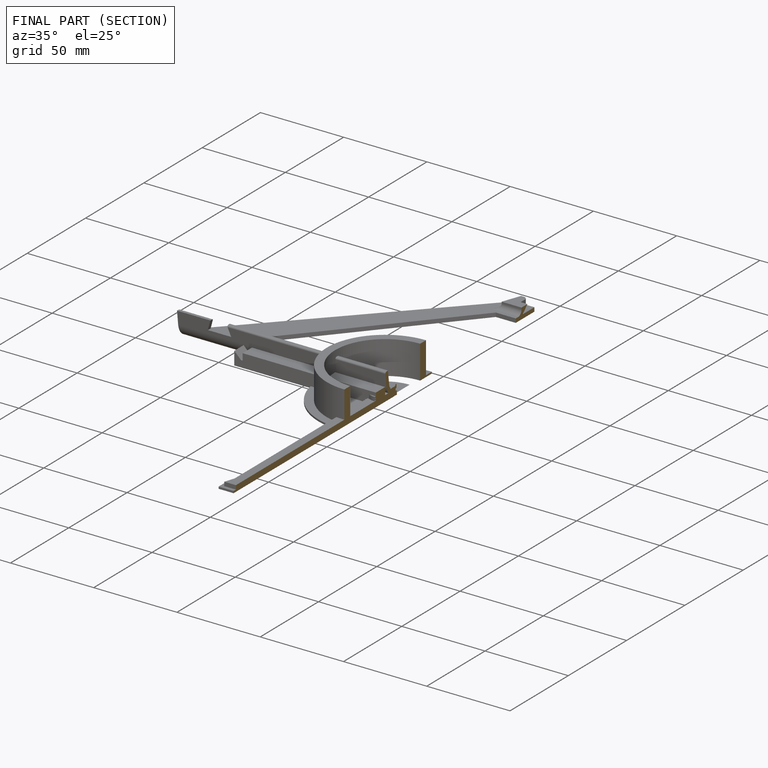
[diagram: finished part — half-section view (interior)]
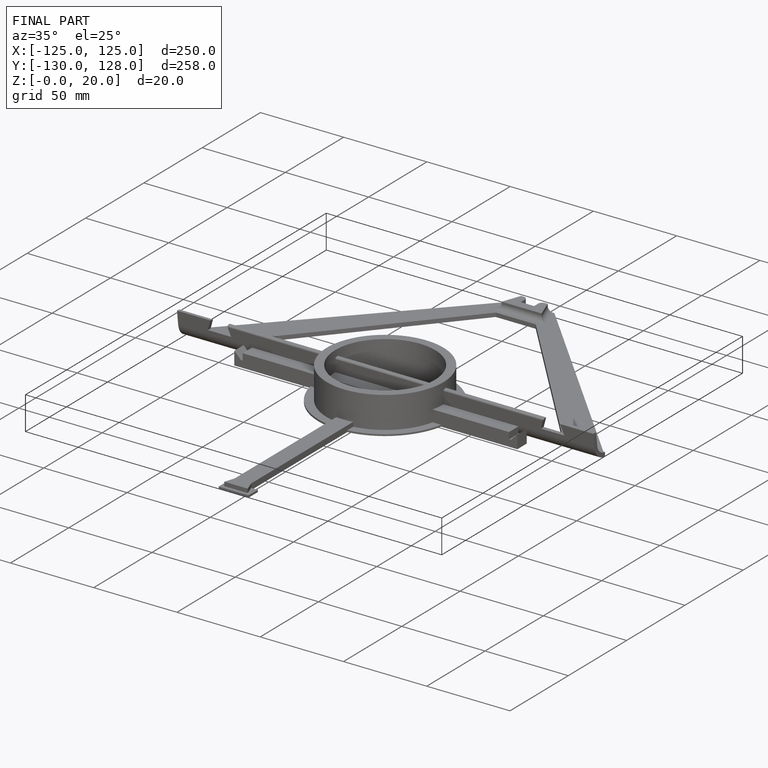
[diagram: finished part — iso view with bounding-box wireframe]
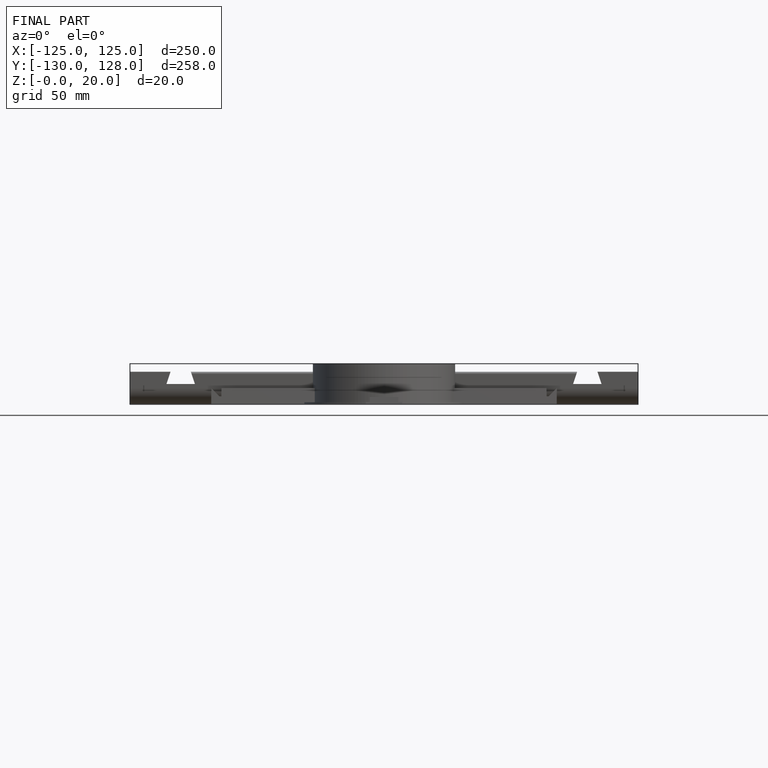
[diagram: finished part — front view with bounding-box wireframe]
